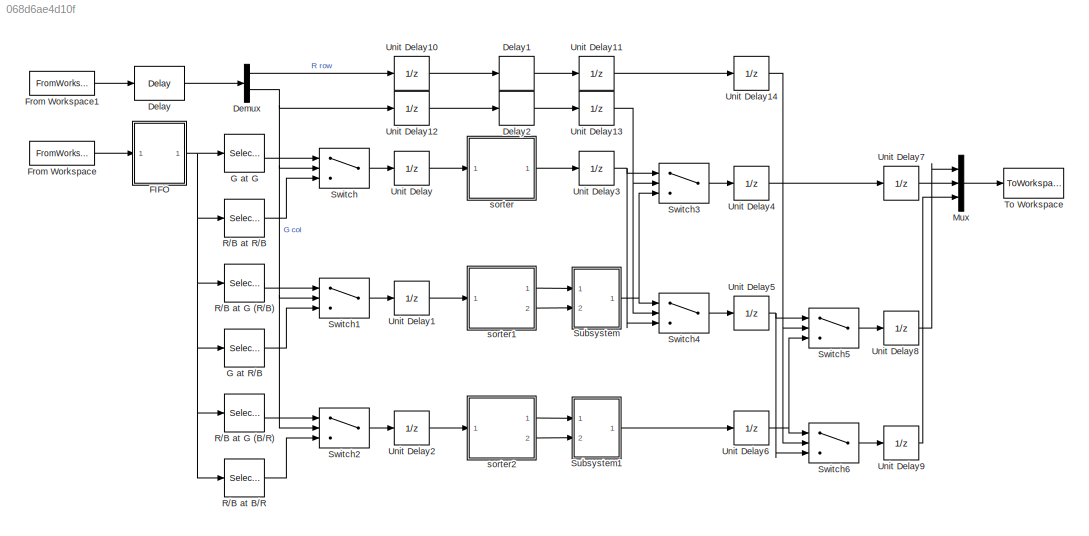
MODEL slx_068d6ae4d10f
KIND model
CONFIG AbsTol = auto
CONFIG EnableMultiTasking = off
CONFIG FixedStep = auto
CONFIG MaxStep = auto
CONFIG MinStep = auto
CONFIG RelTol = 1e-3
CONFIG SampleTimeConstraint = Unconstrained
CONFIG SolverName = FixedStepDiscrete
CONFIG StartTime = 0.0
CONFIG StopTime = xin.TimeInfo.End
BLOCK [Delay] Delay
  DelayLength = mod(2*cols+2,cols)
  InputPortMap = u0
  Ports = [1, 1]
BLOCK [Delay] Delay1
  DelayLength = 6
  InputPortMap = u0
  Ports = [1, 1]
BLOCK [Delay] Delay2
  DelayLength = 6
  InputPortMap = u0
  Ports = [1, 1]
BLOCK [Demux] Demux
  Outputs = 2
  Ports = [1, 2]
BLOCK [SubSystem] FIFO
  Ports = [1, 1]
  ReferencedSubsystem = fifo25
  RequestExecContextInheritance = off
  TreatAsAtomicUnit = on
BLOCK [FromWorkspace] From Workspace
  SampleTime = Ts
  VariableName = xin
BLOCK [FromWorkspace] From Workspace1
  SampleTime = Ts
  VariableName = cin
BLOCK [Selector] G at G
  IndexOptions = Index vector (dialog)
  Indices = [7 9 13 13 13 17 19]
  InputPortWidth = 25
  OutputSizes = 1
  Ports = [1, 1]
BLOCK [Selector] G at R//B
  IndexOptions = Index vector (dialog)
  Indices = [8 8 12 12 14 14 18 18]
  InputPortWidth = 25
  OutputSizes = 1
  Ports = [1, 1]
BLOCK [Mux] Mux
  DisplayOption = bar
  Inputs = 3
  Ports = [3, 1]
BLOCK [Selector] R//B at B//R
  IndexOptions = Index vector (dialog)
  Indices = [7 7 9 9 17 17 19 19]
  InputPortWidth = 25
  OutputSizes = 1
  Ports = [1, 1]
BLOCK [Selector] R//B at G (B//R)
  IndexOptions = Index vector (dialog)
  Indices = [6 8 8 10 16 18 18 20]
  InputPortWidth = 25
  OutputSizes = 1
  Ports = [1, 1]
BLOCK [Selector] R//B at G (R//B)
  IndexOptions = Index vector (dialog)
  Indices = [2 4 12 12 14 14 22 24]
  InputPortWidth = 25
  OutputSizes = 1
  Ports = [1, 1]
BLOCK [Selector] R//B at R//B
  IndexOptions = Index vector (dialog)
  Indices = [3 11 13 13 13 15 23]
  InputPortWidth = 25
  OutputSizes = 1
  Ports = [1, 1]
BLOCK [SubSystem] Subsystem
  Ports = [2, 1]
  ReferencedSubsystem = mean2
  RequestExecContextInheritance = off
  TreatAsAtomicUnit = on
BLOCK [SubSystem] Subsystem1
  Ports = [2, 1]
  ReferencedSubsystem = mean2
  RequestExecContextInheritance = off
  TreatAsAtomicUnit = on
BLOCK [Switch] Switch
  Criteria = u2 ~= 0
  InputSameDT = off
  SaturateOnIntegerOverflow = off
BLOCK [Switch] Switch1
  Criteria = u2 ~= 0
  InputSameDT = off
  SaturateOnIntegerOverflow = off
BLOCK [Switch] Switch2
  Criteria = u2 ~= 0
  InputSameDT = off
  SaturateOnIntegerOverflow = off
BLOCK [Switch] Switch3
  Criteria = u2 ~= 0
  InputSameDT = off
  SaturateOnIntegerOverflow = off
BLOCK [Switch] Switch4
  Criteria = u2 ~= 0
  InputSameDT = off
  SaturateOnIntegerOverflow = off
BLOCK [Switch] Switch5
  Criteria = u2 ~= 0
  InputSameDT = off
  SaturateOnIntegerOverflow = off
BLOCK [Switch] Switch6
  Criteria = u2 ~= 0
  InputSameDT = off
  SaturateOnIntegerOverflow = off
BLOCK [ToWorkspace] To Workspace
  FixptAsFi = on
  MaxDataPoints = inf
  Ports = [1]
  SampleTime = -1
  SaveFormat = Timeseries
  VariableName = yout
BLOCK [UnitDelay] Unit Delay
  HasFrameUpgradeWarning = on
  SampleTime = -1
BLOCK [UnitDelay] Unit Delay1
  HasFrameUpgradeWarning = on
  SampleTime = -1
BLOCK [UnitDelay] Unit Delay10
  HasFrameUpgradeWarning = on
  SampleTime = -1
BLOCK [UnitDelay] Unit Delay11
  HasFrameUpgradeWarning = on
  SampleTime = -1
BLOCK [UnitDelay] Unit Delay12
  HasFrameUpgradeWarning = on
  SampleTime = -1
BLOCK [UnitDelay] Unit Delay13
  HasFrameUpgradeWarning = on
  SampleTime = -1
BLOCK [UnitDelay] Unit Delay14
  HasFrameUpgradeWarning = on
  SampleTime = -1
BLOCK [UnitDelay] Unit Delay2
  HasFrameUpgradeWarning = on
  SampleTime = -1
BLOCK [UnitDelay] Unit Delay3
  HasFrameUpgradeWarning = on
  SampleTime = -1
BLOCK [UnitDelay] Unit Delay4
  HasFrameUpgradeWarning = on
  SampleTime = -1
BLOCK [UnitDelay] Unit Delay5
  HasFrameUpgradeWarning = on
  SampleTime = -1
BLOCK [UnitDelay] Unit Delay6
  HasFrameUpgradeWarning = on
  SampleTime = -1
BLOCK [UnitDelay] Unit Delay7
  HasFrameUpgradeWarning = on
  SampleTime = -1
BLOCK [UnitDelay] Unit Delay8
  HasFrameUpgradeWarning = on
  SampleTime = -1
BLOCK [UnitDelay] Unit Delay9
  HasFrameUpgradeWarning = on
  SampleTime = -1
BLOCK [SubSystem] sorter
  Ports = [1, 1]
  ReferencedSubsystem = median7
  RequestExecContextInheritance = off
  TreatAsAtomicUnit = on
BLOCK [SubSystem] sorter1
  Ports = [1, 2]
  ReferencedSubsystem = median8
  RequestExecContextInheritance = off
  TreatAsAtomicUnit = on
BLOCK [SubSystem] sorter2
  Ports = [1, 2]
  ReferencedSubsystem = median8
  RequestExecContextInheritance = off
  TreatAsAtomicUnit = on
LINE Delay1:1 -> Unit Delay11:1
LINE Delay2:1 -> Unit Delay13:1
LINE Delay:1 -> Demux:1
LINE Demux:1 -> Unit Delay10:1
NET Demux:2 -> Switch1:2, Switch2:2, Switch:2, Unit Delay12:1
NET FIFO:1 -> G at G:1, G at R//B:1, R//B at B//R:1, R//B at G (B//R):1, R//B at G (R//B):1, R//B at R//B:1
LINE From Workspace1:1 -> Delay:1
LINE From Workspace:1 -> FIFO:1
LINE G at G:1 -> Switch:1
LINE G at R//B:1 -> Switch1:3
LINE Mux:1 -> To Workspace:1
LINE R//B at B//R:1 -> Switch2:3
LINE R//B at G (B//R):1 -> Switch2:1
LINE R//B at G (R//B):1 -> Switch1:1
LINE R//B at R//B:1 -> Switch:3
LINE Subsystem1:1 -> Unit Delay6:1
NET Subsystem:1 -> Switch3:3, Switch4:1
LINE Switch1:1 -> Unit Delay1:1
LINE Switch2:1 -> Unit Delay2:1
LINE Switch3:1 -> Unit Delay4:1
LINE Switch4:1 -> Unit Delay5:1
LINE Switch5:1 -> Unit Delay8:1
LINE Switch6:1 -> Unit Delay9:1
LINE Switch:1 -> Unit Delay:1
LINE Unit Delay10:1 -> Delay1:1
LINE Unit Delay11:1 -> Unit Delay14:1
LINE Unit Delay12:1 -> Delay2:1
NET Unit Delay13:1 -> Switch3:2, Switch4:2
NET Unit Delay14:1 -> Switch5:2, Switch6:2
LINE Unit Delay1:1 -> sorter1:1
LINE Unit Delay2:1 -> sorter2:1
NET Unit Delay3:1 -> Switch3:1, Switch4:3
LINE Unit Delay4:1 -> Unit Delay7:1
NET Unit Delay5:1 -> Switch5:1, Switch6:3
NET Unit Delay6:1 -> Switch5:3, Switch6:1
LINE Unit Delay7:1 -> Mux:2
LINE Unit Delay8:1 -> Mux:1
LINE Unit Delay9:1 -> Mux:3
LINE Unit Delay:1 -> sorter:1
LINE sorter1:1 -> Subsystem:1
LINE sorter1:2 -> Subsystem:2
LINE sorter2:1 -> Subsystem1:1
LINE sorter2:2 -> Subsystem1:2
LINE sorter:1 -> Unit Delay3:1
note: NET lines group one-source signal fan-out (src -> all destinations, sorted); 1:1 wires keep LINE
